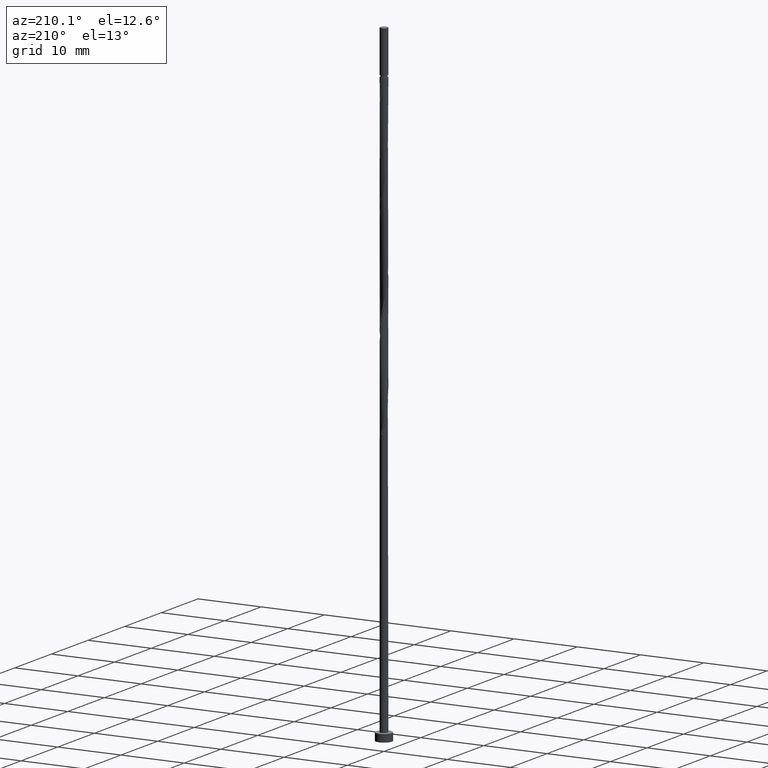
[diagram: clean part render]
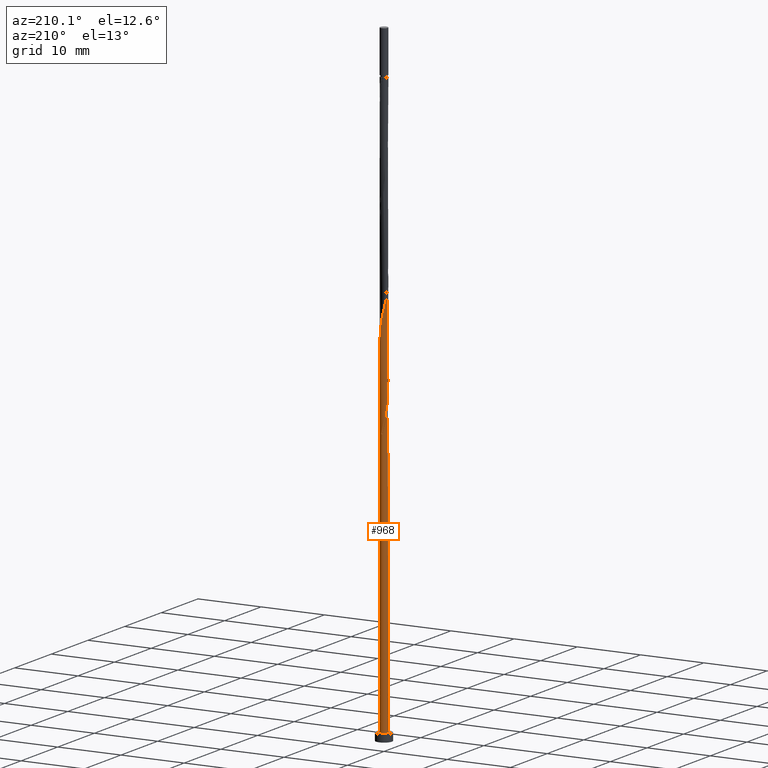
[diagram: same view with one face highlighted and labeled with its STEP entity id]
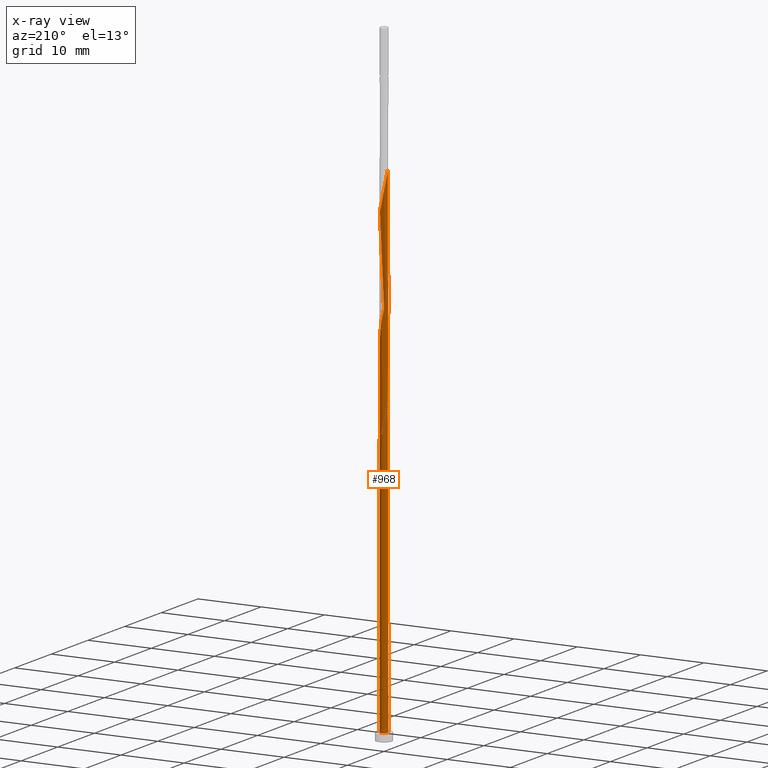
[diagram: x-ray of the same camera — body ghosted, the highlighted face saturated]
A machine part, auxiliary view. The second image highlights one B-rep face of the part: STEP entity #968.
The next image is the same camera in x-ray: the body ghosted, the highlighted face saturated — about 0% of this face is hidden behind the body in this view.
In plain terms, the highlighted cylindrical surface (bore or boss wall) has radius 0.6 mm, axis along (-0, -0, -1).
Its self-contained STEP definition (entity closure, byte-faithful):
#6 = CARTESIAN_POINT ( 'NONE',  ( -0.4495236911988535478, 0.3974021276376851763, 45.87059469398501221 ) ) ;
#15 = CARTESIAN_POINT ( 'NONE',  ( -0.1193984924527943525, 0.5880000000000007443, 43.09281691620722654 ) ) ;
#24 = CARTESIAN_POINT ( 'NONE',  ( -0.6000000000000009770, -0.007741004599211581509, 46.76264606848416605 ) ) ;
#25 = EDGE_CURVE ( 'NONE', #1326, #539, #1361, .T. ) ;
#26 = CARTESIAN_POINT ( 'NONE',  ( -0.5998002894017856468, 0.01547943259732646910, 47.72244654583685985 ) ) ;
#33 = CARTESIAN_POINT ( 'NONE',  ( 0.5195964084923265780, 0.3181389724116664985, 56.51874284213315747 ) ) ;
#40 = CARTESIAN_POINT ( 'NONE',  ( 0.5583336281405728574, 0.2196896895336366007, 56.05577987917020977 ) ) ;
#45 = CARTESIAN_POINT ( 'NONE',  ( -0.2864945628354393925, -0.5271820041178677529, 66.24096506435539311 ) ) ;
#46 = ORIENTED_EDGE ( 'NONE', *, *, #1215, .F. ) ;
#51 = EDGE_CURVE ( 'NONE', #437, #60, #1155, .T. ) ;
#52 = CARTESIAN_POINT ( 'NONE',  ( -0.1193984924527943664, 0.5880000000000007443, 59.75948358287391216 ) ) ;
#58 = CARTESIAN_POINT ( 'NONE',  ( 0.1193984924527944358, -0.5880000000000007443, 51.42615024954056224 ) ) ;
#60 = VERTEX_POINT ( 'NONE', #91 ) ;
#64 = CARTESIAN_POINT ( 'NONE',  ( 0.1935381517654983230, 0.5776987253720321513, 75.03726136065165520 ) ) ;
#71 = VERTEX_POINT ( 'NONE', #100 ) ;
#73 = DIRECTION ( 'NONE',  ( -0.000000000000000000, -0.000000000000000000, -1.000000000000000000 ) ) ;
#80 = CARTESIAN_POINT ( 'NONE',  ( -0.4694236661559321178, 0.3736862609900515886, 78.27800210139240278 ) ) ;
#88 = CARTESIAN_POINT ( 'NONE',  ( 0.2230787571093718613, -0.5669468243246574835, 68.55577987917018845 ) ) ;
#90 = DIRECTION ( 'NONE',  ( -1.000000000000000000, 0.000000000000000000, 0.000000000000000000 ) ) ;
#91 = CARTESIAN_POINT ( 'NONE',  ( -0.6000000000000008660, -3.538667700795459816E-16, 47.79033847119598732 ) ) ;
#97 = EDGE_CURVE ( 'NONE', #285, #437, #176, .T. ) ;
#98 = CARTESIAN_POINT ( 'NONE',  ( 0.08890996198464098943, 0.5933759505236881893, 75.50022432361465974 ) ) ;
#100 = CARTESIAN_POINT ( 'NONE',  ( 0.5999999999999999778, 0.000000000000000000, 1.199999999999999956 ) ) ;
#108 = DIRECTION ( 'NONE',  ( 1.000000000000000000, 0.000000000000000000, 0.000000000000000000 ) ) ;
#115 = EDGE_CURVE ( 'NONE', #1326, #285, #322, .T. ) ;
#116 = CARTESIAN_POINT ( 'NONE',  ( -0.6000000000000009770, 0.007741004599213305824, 47.75632109726361563 ) ) ;
#126 = DIRECTION ( 'NONE',  ( 0.000000000000000000, 0.000000000000000000, 1.000000000000000000 ) ) ;
#131 = AXIS2_PLACEMENT_3D ( 'NONE', #298, #73, #90 ) ;
#141 = CARTESIAN_POINT ( 'NONE',  ( -0.4035326960233207583, 0.4564583187164256706, 61.14837247176276946 ) ) ;
#145 = CARTESIAN_POINT ( 'NONE',  ( -0.5999999999999999778, 0.000000000000000000, 100.0000000000000000 ) ) ;
#153 = CARTESIAN_POINT ( 'NONE',  ( -0.5353146362885432552, 0.2909142032636776731, 62.07429839768871460 ) ) ;
#158 = CARTESIAN_POINT ( 'NONE',  ( 0.4035326960233206472, -0.4564583187164257816, 52.81503913842945508 ) ) ;
#161 = CARTESIAN_POINT ( 'NONE',  ( 0.1193984924527946717, 0.5880000000000009663, 43.09281691620722654 ) ) ;
#166 = CARTESIAN_POINT ( 'NONE',  ( -0.1935381517654979899, -0.5776987253720321513, 50.03726136065166230 ) ) ;
#172 = CARTESIAN_POINT ( 'NONE',  ( -0.4694236661559321178, 0.3736862609900515886, 44.94466876805909550 ) ) ;
#176 =( BOUNDED_CURVE ( )  B_SPLINE_CURVE ( 2, ( #1280, #24, #442, #524, #858, #1272, #776, #272, #1103, #166, #1300, #681, #58, #783, #763, #158, #981, #1087, #895, #375, #769, #1316, #40, #33, #871, #357, #351, #257, #665, #1096, #52, #279, #1194, #141, #1109, #153, #466, #566, #1002, #990, #790, #552, #975, #880, #45, #1206, #460, #265, #804, #88, #510, #284, #387, #902, #826, #1249, #604, #1148, #188, #194, #1330, #1259, #933, #64, #98, #695, #1029, #290, #485, #915, #80, #1125, #1016, #491, #182 ),
 .UNSPECIFIED., .F., .T. ) 
 B_SPLINE_CURVE_WITH_KNOTS ( ( 3, 2, 2, 2, 2, 2, 2, 2, 2, 2, 2, 2, 2, 2, 2, 2, 2, 2, 2, 2, 2, 2, 2, 2, 2, 2, 2, 2, 2, 2, 2, 2, 2, 2, 2, 2, 2, 3 ),
 ( 0.05452480538552895162, 0.05555555555555558023, 0.06944444444444441977, 0.08333333333333337034, 0.09722222222222220989, 0.1111111111111111605, 0.1250000000000000000, 0.1388888888888888395, 0.1527777777777777901, 0.1666666666666666297, 0.1805555555555555802, 0.1944444444444444198, 0.2083333333333333703, 0.2222222222222222099, 0.2361111111111111605, 0.2500000000000000000, 0.2638888888888888395, 0.2777777777777777901, 0.2916666666666666297, 0.3055555555555555802, 0.3194444444444444198, 0.3333333333333333703, 0.3472222222222222099, 0.3611111111111111605, 0.3750000000000000000, 0.3888888888888888395, 0.4027777777777777901, 0.4166666666666666297, 0.4305555555555555802, 0.4444444444444444198, 0.4583333333333333703, 0.4722222222222222099, 0.4861111111111111605, 0.5000000000000000000, 0.5138888888888888395, 0.5277777777777777901, 0.5416666666666667407, 0.5545248053855286186 ),
 .UNSPECIFIED. ) 
 CURVE ( )  GEOMETRIC_REPRESENTATION_ITEM ( )  RATIONAL_B_SPLINE_CURVE ( ( 0.9071930855141216998, 0.9080659294509694224, 0.9090909090909096157, 0.8952797754656441898, 0.9090909090909096157, 0.8952797754656441898, 0.9090909090909096157, 0.8952797754656441898, 0.9090909090909096157, 0.8952797754656441898, 0.9090909090909096157, 0.8952797754656441898, 0.9090909090909096157, 0.8952797754656441898, 0.9090909090909096157, 0.8952797754656441898, 0.9090909090909096157, 0.8952797754656441898, 0.9090909090909096157, 0.8952797754656441898, 0.9090909090909096157, 0.8952797754656441898, 0.9090909090909096157, 0.8952797754656441898, 0.9090909090909096157, 0.8952797754656441898, 0.9090909090909096157, 0.8952797754656441898, 0.9090909090909096157, 0.8952797754656441898, 0.9090909090909096157, 0.8952797754656441898, 0.9090909090909096157, 0.8952797754656441898, 0.9090909090909096157, 0.8952797754656441898, 0.9090909090909096157, 0.8952797754656441898, 0.9090909090909096157, 0.8952797754656441898, 0.9090909090909096157, 0.8952797754656441898, 0.9090909090909096157, 0.8952797754656441898, 0.9090909090909096157, 0.8952797754656441898, 0.9090909090909096157, 0.8952797754656441898, 0.9090909090909096157, 0.8952797754656441898, 0.9090909090909096157, 0.8952797754656441898, 0.9090909090909096157, 0.8952797754656441898, 0.9090909090909096157, 0.8952797754656441898, 0.9090909090909096157, 0.8952797754656441898, 0.9090909090909096157, 0.8952797754656441898, 0.9090909090909096157, 0.8952797754656441898, 0.9090909090909096157, 0.8952797754656441898, 0.9090909090909096157, 0.8952797754656441898, 0.9090909090909096157, 0.8952797754656441898, 0.9090909090909096157, 0.8952797754656441898, 0.9090909090909096157, 0.8952797754656441898, 0.9090909090909096157, 0.8963047551055847162, 0.9071930855141210337 ) ) 
 REPRESENTATION_ITEM ( '' )  );
#182 = CARTESIAN_POINT ( 'NONE',  ( -0.6000000000000009770, -3.622699387621739273E-16, 80.06196202788511584 ) ) ;
#188 = CARTESIAN_POINT ( 'NONE',  ( 0.5583336281405728574, 0.2196896895336366007, 72.72244654583685985 ) ) ;
#190 = VERTEX_POINT ( 'NONE', #708 ) ;
#194 = CARTESIAN_POINT ( 'NONE',  ( 0.5195964084923265780, 0.3181389724116664985, 73.18540950879979334 ) ) ;
#196 = ORIENTED_EDGE ( 'NONE', *, *, #97, .F. ) ;
#222 = AXIS2_PLACEMENT_3D ( 'NONE', #817, #306, #715 ) ;
#241 = ORIENTED_EDGE ( 'NONE', *, *, #879, .F. ) ;
#244 = EDGE_CURVE ( 'NONE', #190, #71, #799, .T. ) ;
#257 = CARTESIAN_POINT ( 'NONE',  ( 0.1935381517654983230, 0.5776987253720321513, 58.37059469398499800 ) ) ;
#258 = FACE_OUTER_BOUND ( 'NONE', #689, .T. ) ;
#265 = CARTESIAN_POINT ( 'NONE',  ( 0.01571822779621675700, -0.6090531756753445602, 67.62985395324425042 ) ) ;
#272 = CARTESIAN_POINT ( 'NONE',  ( -0.3794509739053802400, -0.4766652828637031325, 49.11133543472573137 ) ) ;
#279 = CARTESIAN_POINT ( 'NONE',  ( -0.2230787571093720556, 0.5669468243246571504, 60.22244654583685985 ) ) ;
#284 = CARTESIAN_POINT ( 'NONE',  ( 0.4035326960233206472, -0.4564583187164257816, 69.48170580509612648 ) ) ;
#285 = VERTEX_POINT ( 'NONE', #328 ) ;
#290 = CARTESIAN_POINT ( 'NONE',  ( -0.2230787571093720556, 0.5669468243246571504, 76.88911321250351705 ) ) ;
#291 = CYLINDRICAL_SURFACE ( 'NONE', #131, 0.5999999999999999778 ) ;
#298 = CARTESIAN_POINT ( 'NONE',  ( 0.000000000000000000, 0.000000000000000000, 100.0000000000000000 ) ) ;
#306 = DIRECTION ( 'NONE',  ( 0.000000000000000000, 0.000000000000000000, 1.000000000000000000 ) ) ;
#307 = CARTESIAN_POINT ( 'NONE',  ( 0.000000000000000000, 0.000000000000000000, 43.09281691620722654 ) ) ;
#322 =( BOUNDED_CURVE ( )  B_SPLINE_CURVE ( 2, ( #1020, #1009, #1337, #1118, #172, #478, #588, #381, #501 ),
 .UNSPECIFIED., .F., .T. ) 
 B_SPLINE_CURVE_WITH_KNOTS ( ( 3, 2, 2, 2, 3 ),
 ( 0.000000000000000000, 0.01388888888888883955, 0.02777777777777779011, 0.04166666666666662966, 0.05452480538552895162 ),
 .UNSPECIFIED. ) 
 CURVE ( )  GEOMETRIC_REPRESENTATION_ITEM ( )  RATIONAL_B_SPLINE_CURVE ( ( 0.9090909090909096157, 0.8952797754656441898, 0.9090909090909096157, 0.8952797754656441898, 0.9090909090909096157, 0.8952797754656441898, 0.9090909090909096157, 0.8963047551055843831, 0.9071930855141216998 ) ) 
 REPRESENTATION_ITEM ( '' )  );
#324 = CARTESIAN_POINT ( 'NONE',  ( -0.5970708477888191368, 0.1212404066556068832, 47.25948358287388373 ) ) ;
#328 = CARTESIAN_POINT ( 'NONE',  ( -0.6000000000000009770, 4.070868384028552028E-16, 46.72862869455180856 ) ) ;
#335 = CARTESIAN_POINT ( 'NONE',  ( -0.2864945628354391705, 0.5271820041178677529, 44.94466876805908839 ) ) ;
#345 = LINE ( 'NONE', #145, #368 ) ;
#351 = CARTESIAN_POINT ( 'NONE',  ( 0.2864945628354393925, 0.5271820041178677529, 57.90763173102205030 ) ) ;
#357 = CARTESIAN_POINT ( 'NONE',  ( 0.3794509739053803510, 0.4766652828637031325, 57.44466876805908129 ) ) ;
#368 = VECTOR ( 'NONE', #556, 1000.000000000000000 ) ;
#370 = ORIENTED_EDGE ( 'NONE', *, *, #115, .F. ) ;
#375 = CARTESIAN_POINT ( 'NONE',  ( 0.6025297310147521568, -0.09028154146095432320, 54.66689099028130272 ) ) ;
#381 = CARTESIAN_POINT ( 'NONE',  ( -0.6000000000000004219, 0.09783262309227507003, 46.29870918218618669 ) ) ;
#387 = CARTESIAN_POINT ( 'NONE',  ( 0.4694236661559321178, -0.3736862609900515886, 69.94466876805907418 ) ) ;
#393 = ORIENTED_EDGE ( 'NONE', *, *, #244, .T. ) ;
#437 = VERTEX_POINT ( 'NONE', #889 ) ;
#442 = CARTESIAN_POINT ( 'NONE',  ( -0.5998002894017856468, -0.01547943259732641533, 46.79652061991093603 ) ) ;
#460 = CARTESIAN_POINT ( 'NONE',  ( -0.08890996198464064249, -0.5933759505236885223, 67.16689099028130272 ) ) ;
#461 = CARTESIAN_POINT ( 'NONE',  ( 0.1193984924527946717, 0.5880000000000009663, 43.09281691620722654 ) ) ;
#462 = ORIENTED_EDGE ( 'NONE', *, *, #777, .T. ) ;
#466 = CARTESIAN_POINT ( 'NONE',  ( -0.5689221836516477060, 0.1905978723623158733, 62.53726136065168362 ) ) ;
#478 = CARTESIAN_POINT ( 'NONE',  ( -0.5353146362885432552, 0.2909142032636776731, 45.40763173102203609 ) ) ;
#485 = CARTESIAN_POINT ( 'NONE',  ( -0.3133057265663464208, 0.5117025715205412162, 77.35207617546649317 ) ) ;
#491 = CARTESIAN_POINT ( 'NONE',  ( -0.5999999999999995337, 0.09783262309227755416, 79.63204251551948687 ) ) ;
#501 = CARTESIAN_POINT ( 'NONE',  ( -0.6000000000000009770, 4.070868384028552028E-16, 46.72862869455180856 ) ) ;
#510 = CARTESIAN_POINT ( 'NONE',  ( 0.3133057265663464208, -0.5117025715205413272, 69.01874284213319299 ) ) ;
#524 = CARTESIAN_POINT ( 'NONE',  ( -0.5970708477888188037, -0.1212404066556067722, 47.25948358287388373 ) ) ;
#525 = CARTESIAN_POINT ( 'NONE',  ( -0.5195964084923264670, 0.3181389724116668871, 46.33355765694797412 ) ) ;
#539 = VERTEX_POINT ( 'NONE', #161 ) ;
#552 = CARTESIAN_POINT ( 'NONE',  ( -0.5195964084923263560, -0.3181389724116667761, 64.85207617546647896 ) ) ;
#556 = DIRECTION ( 'NONE',  ( -0.000000000000000000, -0.000000000000000000, -1.000000000000000000 ) ) ;
#558 = CARTESIAN_POINT ( 'NONE',  ( 0.01571822779621694435, 0.6090531756753444492, 43.55577987917018845 ) ) ;
#565 = AXIS2_PLACEMENT_3D ( 'NONE', #646, #126, #108 ) ;
#566 = CARTESIAN_POINT ( 'NONE',  ( -0.6025297310147522678, 0.09028154146095397625, 63.00022432361463132 ) ) ;
#567 =( BOUNDED_CURVE ( )  B_SPLINE_CURVE ( 2, ( #750, #116, #26, #324, #1161, #525, #6, #1273, #335, #953, #1089, #558, #461 ),
 .UNSPECIFIED., .F., .T. ) 
 B_SPLINE_CURVE_WITH_KNOTS ( ( 3, 2, 2, 2, 2, 2, 3 ),
 ( 0.9295248053855291737, 0.9305555555555555802, 0.9444444444444444198, 0.9583333333333333703, 0.9722222222222222099, 0.9861111111111111605, 1.000000000000000000 ),
 .UNSPECIFIED. ) 
 CURVE ( )  GEOMETRIC_REPRESENTATION_ITEM ( )  RATIONAL_B_SPLINE_CURVE ( ( 0.9071930855141226990, 0.9080659294509701995, 0.9090909090909101709, 0.8952797754656447449, 0.9090909090909101709, 0.8952797754656447449, 0.9090909090909101709, 0.8952797754656447449, 0.9090909090909101709, 0.8952797754656447449, 0.9090909090909101709, 0.8952797754656447449, 0.9090909090909101709 ) ) 
 REPRESENTATION_ITEM ( '' )  );
#588 = CARTESIAN_POINT ( 'NONE',  ( -0.5689221836516477060, 0.1905978723623158733, 45.87059469398501221 ) ) ;
#604 = CARTESIAN_POINT ( 'NONE',  ( 0.5998002894017856468, 0.01547943259732646910, 71.79652061991092182 ) ) ;
#607 = CARTESIAN_POINT ( 'NONE',  ( -0.5999999999999999778, 0.000000000000000000, 100.0000000000000000 ) ) ;
#646 = CARTESIAN_POINT ( 'NONE',  ( 0.000000000000000000, 0.000000000000000000, 1.199999999999999956 ) ) ;
#665 = CARTESIAN_POINT ( 'NONE',  ( 0.08890996198464098943, 0.5933759505236881893, 58.83355765694798123 ) ) ;
#666 = ORIENTED_EDGE ( 'NONE', *, *, #1215, .T. ) ;
#681 = CARTESIAN_POINT ( 'NONE',  ( 0.01571822779621675700, -0.6090531756753445602, 50.96318728657757902 ) ) ;
#682 = ORIENTED_EDGE ( 'NONE', *, *, #25, .T. ) ;
#689 = EDGE_LOOP ( 'NONE', ( #991, #196, #666, #393, #462, #46, #370, #682, #241 ) ) ;
#695 = CARTESIAN_POINT ( 'NONE',  ( -0.01571822779621692701, 0.6090531756753445602, 75.96318728657757902 ) ) ;
#708 = CARTESIAN_POINT ( 'NONE',  ( -0.5999999999999999778, 0.000000000000000000, 1.199999999999999956 ) ) ;
#715 = DIRECTION ( 'NONE',  ( 1.000000000000000000, 0.000000000000000000, 0.000000000000000000 ) ) ;
#716 = CIRCLE ( 'NONE', #565, 0.5999999999999999778 ) ;
#750 = CARTESIAN_POINT ( 'NONE',  ( -0.6000000000000008660, -3.538667700795460309E-16, 47.79033847119598732 ) ) ;
#755 = AXIS2_PLACEMENT_3D ( 'NONE', #307, #1038, #1139 ) ;
#763 = CARTESIAN_POINT ( 'NONE',  ( 0.3133057265663464208, -0.5117025715205413272, 52.35207617546647896 ) ) ;
#769 = CARTESIAN_POINT ( 'NONE',  ( 0.5998002894017856468, 0.01547943259732646910, 55.12985395324426463 ) ) ;
#776 = CARTESIAN_POINT ( 'NONE',  ( -0.4495236911988535478, -0.3974021276376848988, 48.64837247176278368 ) ) ;
#777 = EDGE_CURVE ( 'NONE', #71, #190, #716, .T. ) ;
#783 = CARTESIAN_POINT ( 'NONE',  ( 0.2230787571093718613, -0.5669468243246574835, 51.88911321250352415 ) ) ;
#790 = CARTESIAN_POINT ( 'NONE',  ( -0.5583336281405727464, -0.2196896895336367950, 64.38911321250354547 ) ) ;
#799 = CIRCLE ( 'NONE', #222, 0.5999999999999999778 ) ;
#804 = CARTESIAN_POINT ( 'NONE',  ( 0.1193984924527944358, -0.5880000000000007443, 68.09281691620722654 ) ) ;
#817 = CARTESIAN_POINT ( 'NONE',  ( 0.000000000000000000, 0.000000000000000000, 1.199999999999999956 ) ) ;
#826 = CARTESIAN_POINT ( 'NONE',  ( 0.5689221836516477060, -0.1905978723623161508, 70.87059469398502642 ) ) ;
#858 = CARTESIAN_POINT ( 'NONE',  ( -0.5583336281405727464, -0.2196896895336367950, 47.72244654583686696 ) ) ;
#871 = CARTESIAN_POINT ( 'NONE',  ( 0.4495236911988534367, 0.3974021276376850653, 56.98170580509611938 ) ) ;
#879 = EDGE_CURVE ( 'NONE', #60, #539, #567, .T. ) ;
#880 = CARTESIAN_POINT ( 'NONE',  ( -0.3794509739053802400, -0.4766652828637031325, 65.77800210139241699 ) ) ;
#889 = CARTESIAN_POINT ( 'NONE',  ( -0.6000000000000009770, -3.622699387621739273E-16, 80.06196202788511584 ) ) ;
#895 = CARTESIAN_POINT ( 'NONE',  ( 0.5689221836516477060, -0.1905978723623161508, 54.20392802731833370 ) ) ;
#902 = CARTESIAN_POINT ( 'NONE',  ( 0.5353146362885432552, -0.2909142032636777286, 70.40763173102205030 ) ) ;
#915 = CARTESIAN_POINT ( 'NONE',  ( -0.4035326960233207583, 0.4564583187164256706, 77.81503913842944087 ) ) ;
#933 = CARTESIAN_POINT ( 'NONE',  ( 0.2864945628354393925, 0.5271820041178677529, 74.57429839768867907 ) ) ;
#953 = CARTESIAN_POINT ( 'NONE',  ( -0.1935381517654980177, 0.5776987253720323734, 44.48170580509612648 ) ) ;
#968 = ADVANCED_FACE ( 'NONE', ( #258 ), #291, .T. ) ;
#975 = CARTESIAN_POINT ( 'NONE',  ( -0.4495236911988535478, -0.3974021276376848988, 65.31503913842945508 ) ) ;
#981 = CARTESIAN_POINT ( 'NONE',  ( 0.4694236661559321178, -0.3736862609900515886, 53.27800210139241699 ) ) ;
#990 = CARTESIAN_POINT ( 'NONE',  ( -0.5970708477888188037, -0.1212404066556067722, 63.92615024954056224 ) ) ;
#991 = ORIENTED_EDGE ( 'NONE', *, *, #51, .F. ) ;
#1002 = CARTESIAN_POINT ( 'NONE',  ( -0.5998002894017856468, -0.01547943259732641533, 63.46318728657760033 ) ) ;
#1009 = CARTESIAN_POINT ( 'NONE',  ( -0.2230787571093720556, 0.5669468243246571504, 43.55577987917018845 ) ) ;
#1016 = CARTESIAN_POINT ( 'NONE',  ( -0.5689221836516477060, 0.1905978723623158733, 79.20392802731831239 ) ) ;
#1020 = CARTESIAN_POINT ( 'NONE',  ( -0.1193984924527943525, 0.5880000000000007443, 43.09281691620722654 ) ) ;
#1029 = CARTESIAN_POINT ( 'NONE',  ( -0.1193984924527943664, 0.5880000000000007443, 76.42615024954059777 ) ) ;
#1031 = DIRECTION ( 'NONE',  ( -0.000000000000000000, -0.000000000000000000, -1.000000000000000000 ) ) ;
#1038 = DIRECTION ( 'NONE',  ( 0.000000000000000000, -0.000000000000000000, -1.000000000000000000 ) ) ;
#1087 = CARTESIAN_POINT ( 'NONE',  ( 0.5353146362885432552, -0.2909142032636777286, 53.74096506435537890 ) ) ;
#1089 = CARTESIAN_POINT ( 'NONE',  ( -0.08890996198464053146, 0.5933759505236886334, 44.01874284213317168 ) ) ;
#1096 = CARTESIAN_POINT ( 'NONE',  ( -0.01571822779621692701, 0.6090531756753445602, 59.29652061991092893 ) ) ;
#1103 = CARTESIAN_POINT ( 'NONE',  ( -0.2864945628354393925, -0.5271820041178677529, 49.57429839768870750 ) ) ;
#1109 = CARTESIAN_POINT ( 'NONE',  ( -0.4694236661559321178, 0.3736862609900515886, 61.61133543472575980 ) ) ;
#1118 = CARTESIAN_POINT ( 'NONE',  ( -0.4035326960233207583, 0.4564583187164256706, 44.48170580509611227 ) ) ;
#1125 = CARTESIAN_POINT ( 'NONE',  ( -0.5353146362885432552, 0.2909142032636776731, 78.74096506435537890 ) ) ;
#1138 = VECTOR ( 'NONE', #1031, 1000.000000000000000 ) ;
#1139 = DIRECTION ( 'NONE',  ( -1.000000000000000000, 0.000000000000000000, 0.000000000000000000 ) ) ;
#1148 = CARTESIAN_POINT ( 'NONE',  ( 0.5970708477888188037, 0.1212404066556067028, 72.25948358287386952 ) ) ;
#1155 = LINE ( 'NONE', #607, #1138 ) ;
#1161 = CARTESIAN_POINT ( 'NONE',  ( -0.5583336281405725243, 0.2196896895336368782, 46.79652061991093603 ) ) ;
#1194 = CARTESIAN_POINT ( 'NONE',  ( -0.3133057265663464208, 0.5117025715205412162, 60.68540950879982177 ) ) ;
#1206 = CARTESIAN_POINT ( 'NONE',  ( -0.1935381517654979899, -0.5776987253720321513, 66.70392802731832660 ) ) ;
#1215 = EDGE_CURVE ( 'NONE', #285, #190, #345, .T. ) ;
#1249 = CARTESIAN_POINT ( 'NONE',  ( 0.6025297310147521568, -0.09028154146095432320, 71.33355765694795991 ) ) ;
#1259 = CARTESIAN_POINT ( 'NONE',  ( 0.3794509739053803510, 0.4766652828637031325, 74.11133543472574559 ) ) ;
#1272 = CARTESIAN_POINT ( 'NONE',  ( -0.5195964084923263560, -0.3181389724116667761, 48.18540950879981466 ) ) ;
#1273 = CARTESIAN_POINT ( 'NONE',  ( -0.3794509739053802955, 0.4766652828637032990, 45.40763173102203609 ) ) ;
#1280 = CARTESIAN_POINT ( 'NONE',  ( -0.6000000000000009770, 4.070868384028552028E-16, 46.72862869455180856 ) ) ;
#1300 = CARTESIAN_POINT ( 'NONE',  ( -0.08890996198464064249, -0.5933759505236885223, 50.50022432361464553 ) ) ;
#1316 = CARTESIAN_POINT ( 'NONE',  ( 0.5970708477888188037, 0.1212404066556067028, 55.59281691620723365 ) ) ;
#1326 = VERTEX_POINT ( 'NONE', #15 ) ;
#1330 = CARTESIAN_POINT ( 'NONE',  ( 0.4495236911988534367, 0.3974021276376850653, 73.64837247176279789 ) ) ;
#1337 = CARTESIAN_POINT ( 'NONE',  ( -0.3133057265663464208, 0.5117025715205412162, 44.01874284213317878 ) ) ;
#1361 = CIRCLE ( 'NONE', #755, 0.5999999999999999778 ) ;